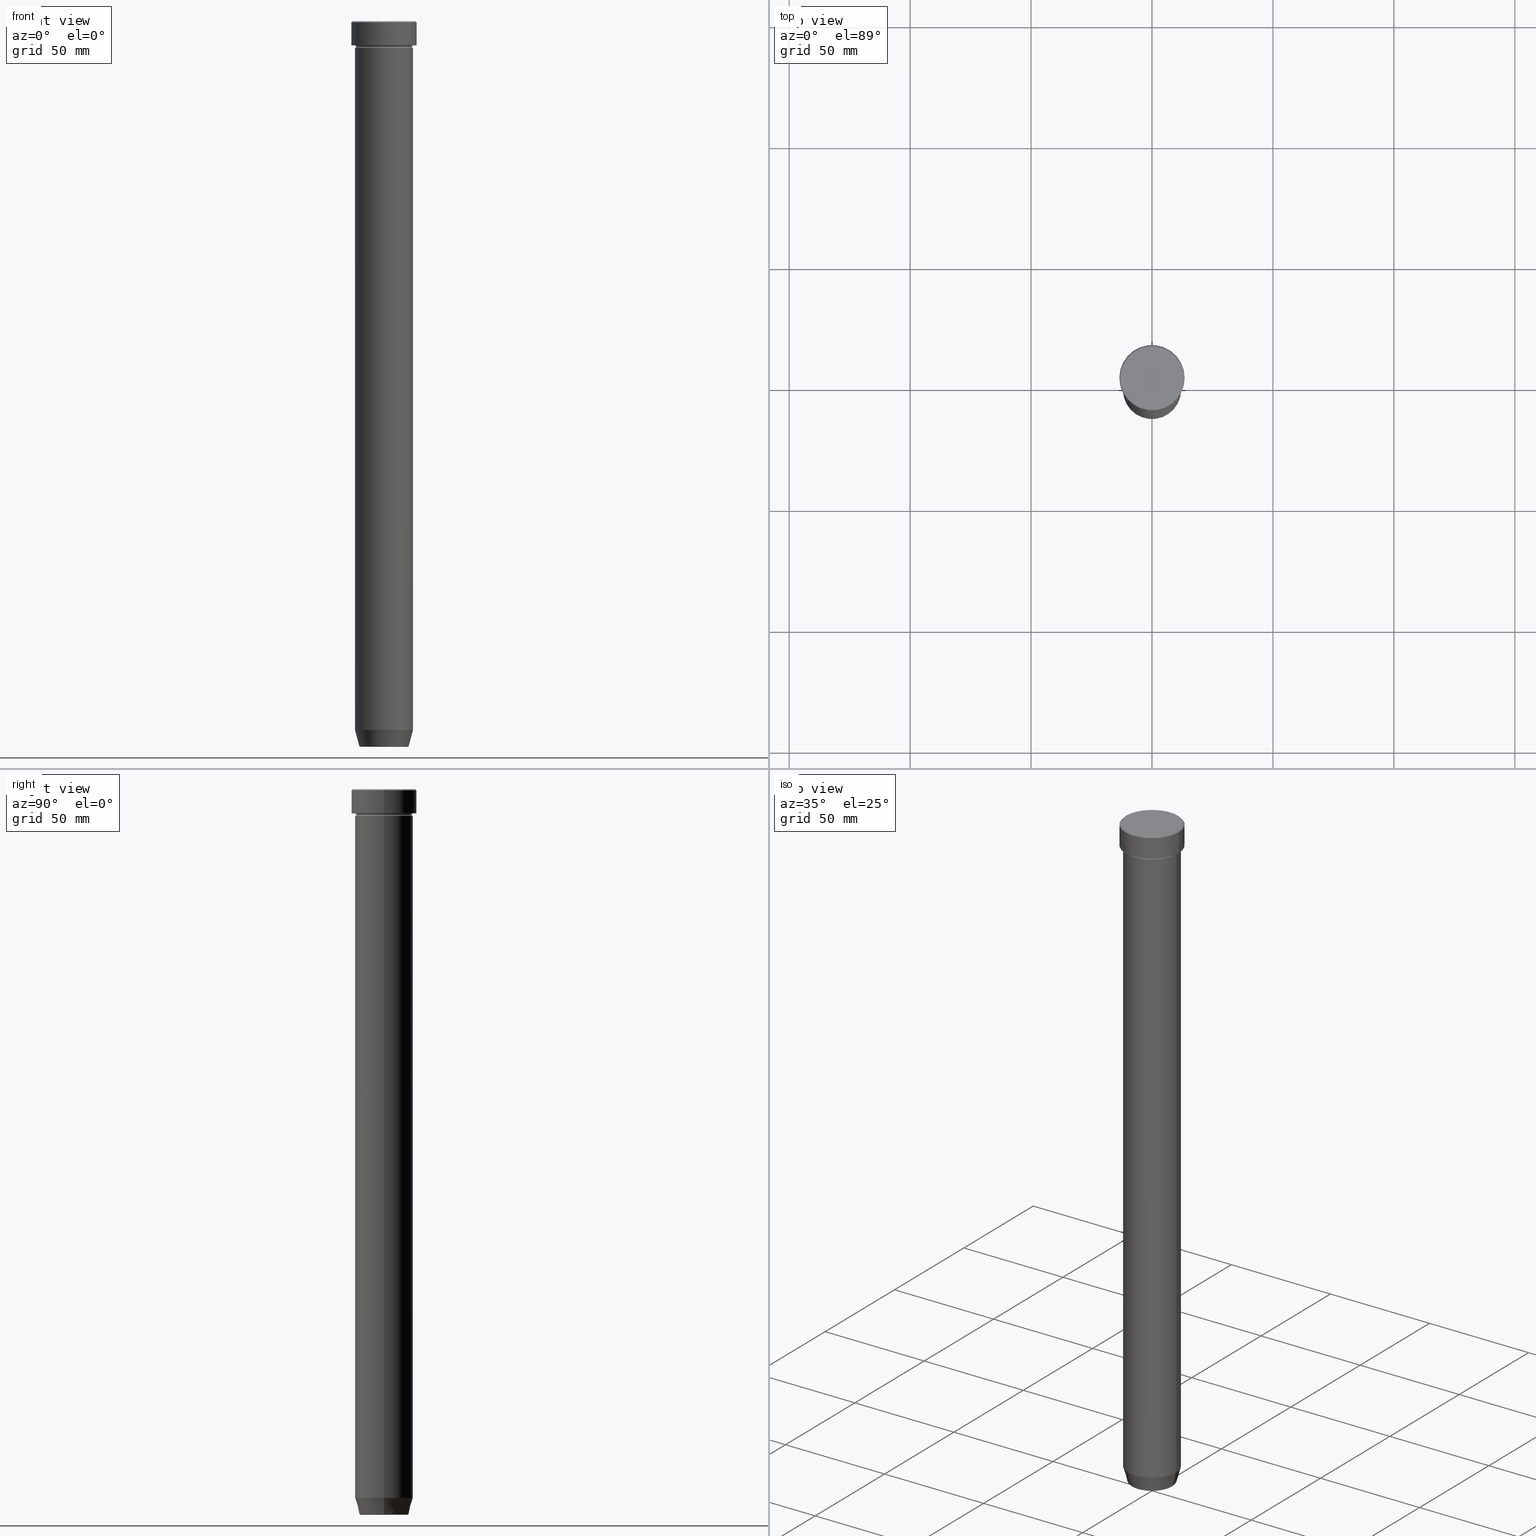
[diagram: canonical four-view strip — front | top / right | iso, engineering-drawing reading convention]
A machine part, canonical four-view strip (front | top / right | iso — engineering-drawing reading convention). The complete STEP part file that produces these views, byte-faithful:
ISO-10303-21;
HEADER;
FILE_DESCRIPTION (( 'STEP AP203' ),
    '1' );
FILE_NAME ('f168.STEP',
    '2024-01-02T17:40:18',
    ( '' ),
    ( '' ),
    'SwSTEP 2.0',
    'SolidWorks 2019',
    '' );
FILE_SCHEMA (( 'CONFIG_CONTROL_DESIGN' ));
ENDSEC;

DATA;
#1 = CARTESIAN_POINT ( 'NONE',  ( 0.000000000000000000, 0.000000000000000000, 0.000000000000000000 ) ) ;
#2 = DIRECTION ( 'NONE',  ( 1.000000000000000000, 0.000000000000000000, 0.000000000000000000 ) ) ;
#3 = ADVANCED_FACE ( 'NONE', ( #332 ), #423, .T. ) ;
#4 = CARTESIAN_POINT ( 'NONE',  ( 0.000000000000000000, 0.000000000000000000, -27.00000000000000000 ) ) ;
#5 = DIRECTION ( 'NONE',  ( -1.000000000000000000, 1.224646799147353454E-16, 0.000000000000000000 ) ) ;
#6 = AXIS2_PLACEMENT_3D ( 'NONE', #547, #9, #286 ) ;
#7 = APPROVAL ( #433, 'NEUR�EN�' ) ;
#8 = PERSON_AND_ORGANIZATION ( #308, #228 ) ;
#9 = DIRECTION ( 'NONE',  ( -0.000000000000000000, -0.000000000000000000, 1.000000000000000000 ) ) ;
#10 = AXIS2_PLACEMENT_3D ( 'NONE', #435, #304, #486 ) ;
#11 = AXIS2_PLACEMENT_3D ( 'NONE', #166, #536, #499 ) ;
#12 = APPROVAL_STATUS ( 'not_yet_approved' ) ;
#13 = CARTESIAN_POINT ( 'NONE',  ( -10.12435565298213369, 1.239875974385398152E-15, -300.0000000000000568 ) ) ;
#14 = ADVANCED_FACE ( 'NONE', ( #472 ), #234, .T. ) ;
#15 = LINE ( 'NONE', #158, #209 ) ;
#16 = CALENDAR_DATE ( 2024, 2, 1 ) ;
#17 = PLANE ( 'NONE',  #356 ) ;
#18 = AXIS2_PLACEMENT_3D ( 'NONE', #155, #570, #441 ) ;
#19 = CIRCLE ( 'NONE', #168, 12.00000000000000000 ) ;
#20 = CALENDAR_DATE ( 2024, 2, 1 ) ;
#21 = DIRECTION ( 'NONE',  ( -1.000000000000000000, 0.000000000000000000, -0.000000000000000000 ) ) ;
#22 = ORIENTED_EDGE ( 'NONE', *, *, #142, .T. ) ;
#23 = CC_DESIGN_PERSON_AND_ORGANIZATION_ASSIGNMENT ( #207, #471, ( #221 ) ) ;
#24 = CARTESIAN_POINT ( 'NONE',  ( 0.000000000000000000, 0.000000000000000000, -0.5000000000000091038 ) ) ;
#25 = ORIENTED_EDGE ( 'NONE', *, *, #142, .F. ) ;
#26 = CARTESIAN_POINT ( 'NONE',  ( 0.000000000000000000, 0.000000000000000000, -293.0000000000000568 ) ) ;
#27 = ORIENTED_EDGE ( 'NONE', *, *, #328, .T. ) ;
#28 = EDGE_LOOP ( 'NONE', ( #85, #170, #506, #141 ) ) ;
#29 = VECTOR ( 'NONE', #211, 1000.000000000000114 ) ;
#30 = AXIS2_PLACEMENT_3D ( 'NONE', #320, #283, #422 ) ;
#31 = DIRECTION ( 'NONE',  ( 0.000000000000000000, 0.000000000000000000, -1.000000000000000000 ) ) ;
#32 = EDGE_CURVE ( 'NONE', #121, #281, #426, .T. ) ;
#33 = ORIENTED_EDGE ( 'NONE', *, *, #88, .F. ) ;
#34 = CARTESIAN_POINT ( 'NONE',  ( 0.000000000000000000, 0.000000000000000000, -0.5000000000000091038 ) ) ;
#35 = ORIENTED_EDGE ( 'NONE', *, *, #533, .T. ) ;
#36 = FACE_OUTER_BOUND ( 'NONE', #28, .T. ) ;
#37 = ORIENTED_EDGE ( 'NONE', *, *, #179, .F. ) ;
#38 = DIRECTION ( 'NONE',  ( 0.000000000000000000, 0.000000000000000000, -1.000000000000000000 ) ) ;
#39 = AXIS2_PLACEMENT_3D ( 'NONE', #418, #185, #372 ) ;
#40 = ORIENTED_EDGE ( 'NONE', *, *, #559, .F. ) ;
#41 = EDGE_CURVE ( 'NONE', #317, #492, #325, .T. ) ;
#42 = CYLINDRICAL_SURFACE ( 'NONE', #599, 13.50000000000000000 ) ;
#43 = ORIENTED_EDGE ( 'NONE', *, *, #515, .T. ) ;
#44 = CARTESIAN_POINT ( 'NONE',  ( 0.000000000000000000, 0.000000000000000000, -299.6294095225512706 ) ) ;
#45 = CARTESIAN_POINT ( 'NONE',  ( 0.000000000000000000, 0.000000000000000000, -300.0000000000000568 ) ) ;
#46 = CARTESIAN_POINT ( 'NONE',  ( 0.000000000000000000, 0.000000000000000000, 0.000000000000000000 ) ) ;
#47 = AXIS2_PLACEMENT_3D ( 'NONE', #147, #292, #327 ) ;
#48 = DIRECTION ( 'NONE',  ( 1.000000000000000000, 0.000000000000000000, 0.000000000000000000 ) ) ;
#49 = AXIS2_PLACEMENT_3D ( 'NONE', #523, #112, #21 ) ;
#50 = CARTESIAN_POINT ( 'NONE',  ( 0.000000000000000000, 0.000000000000000000, -299.5000000000000568 ) ) ;
#51 = AXIS2_PLACEMENT_3D ( 'NONE', #382, #38, #181 ) ;
#52 = EDGE_CURVE ( 'NONE', #543, #469, #585, .T. ) ;
#53 = CARTESIAN_POINT ( 'NONE',  ( 12.00000000000000000, 0.000000000000000000, 0.000000000000000000 ) ) ;
#54 = DIRECTION ( 'NONE',  ( -0.000000000000000000, -0.000000000000000000, 1.000000000000000000 ) ) ;
#55 = PRODUCT_RELATED_PRODUCT_CATEGORY ( 'detail', '', ( #221 ) ) ;
#56 = CALENDAR_DATE ( 2024, 2, 1 ) ;
#57 = DIRECTION ( 'NONE',  ( -1.000000000000000000, -1.224646799147353454E-16, 0.000000000000000000 ) ) ;
#58 = DATE_AND_TIME ( #103, #118 ) ;
#59 = CIRCLE ( 'NONE', #440, 0.5000000000000004441 ) ;
#60 = ORIENTED_EDGE ( 'NONE', *, *, #564, .T. ) ;
#61 = PERSON_AND_ORGANIZATION ( #308, #228 ) ;
#62 = APPLICATION_CONTEXT ( 'configuration controlled 3d designs of mechanical parts and assemblies' ) ;
#63 = CC_DESIGN_PERSON_AND_ORGANIZATION_ASSIGNMENT ( #245, #157, ( #578 ) ) ;
#64 = DIRECTION ( 'NONE',  ( -0.000000000000000000, -0.000000000000000000, 1.000000000000000000 ) ) ;
#65 = APPROVAL_DATE_TIME ( #485, #7 ) ;
#66 = DIRECTION ( 'NONE',  ( -0.000000000000000000, -0.000000000000000000, 1.000000000000000000 ) ) ;
#67 = SECURITY_CLASSIFICATION_LEVEL ( 'unclassified' ) ;
#68 = DIRECTION ( 'NONE',  ( 1.000000000000000000, 0.000000000000000000, 0.000000000000000000 ) ) ;
#69 = ORIENTED_EDGE ( 'NONE', *, *, #583, .F. ) ;
#70 = EDGE_CURVE ( 'NONE', #592, #407, #336, .T. ) ;
#71 = AXIS2_PLACEMENT_3D ( 'NONE', #323, #587, #272 ) ;
#72 = EDGE_LOOP ( 'NONE', ( #554, #183, #76, #25 ) ) ;
#73 = DIRECTION ( 'NONE',  ( -1.000000000000000000, 0.000000000000000000, 0.000000000000000000 ) ) ;
#74 = DIRECTION ( 'NONE',  ( 1.000000000000000000, 0.000000000000000000, 0.000000000000000000 ) ) ;
#75 = ORIENTED_EDGE ( 'NONE', *, *, #484, .T. ) ;
#76 = ORIENTED_EDGE ( 'NONE', *, *, #171, .T. ) ;
#77 = EDGE_CURVE ( 'NONE', #364, #407, #474, .T. ) ;
#78 = CARTESIAN_POINT ( 'NONE',  ( -12.00000000000000000, 1.469576158976823947E-15, 0.000000000000000000 ) ) ;
#79 = ORIENTED_EDGE ( 'NONE', *, *, #206, .T. ) ;
#80 = AXIS2_PLACEMENT_3D ( 'NONE', #26, #131, #496 ) ;
#81 = CC_DESIGN_SECURITY_CLASSIFICATION ( #478, ( #578 ) ) ;
#82 = DIRECTION ( 'NONE',  ( -0.000000000000000000, -0.000000000000000000, 1.000000000000000000 ) ) ;
#83 = ORIENTED_EDGE ( 'NONE', *, *, #32, .F. ) ;
#84 = CARTESIAN_POINT ( 'NONE',  ( 12.00000000000000000, 0.000000000000000000, -11.00000000000000000 ) ) ;
#85 = ORIENTED_EDGE ( 'NONE', *, *, #32, .T. ) ;
#86 = DIRECTION ( 'NONE',  ( 0.000000000000000000, -1.000000000000000000, 0.000000000000000000 ) ) ;
#87 = ORIENTED_EDGE ( 'NONE', *, *, #559, .T. ) ;
#88 = EDGE_CURVE ( 'NONE', #231, #237, #184, .T. ) ;
#89 = CARTESIAN_POINT ( 'NONE',  ( 0.000000000000000000, 0.000000000000000000, -27.00000000000000000 ) ) ;
#90 = AXIS2_PLACEMENT_3D ( 'NONE', #285, #558, #546 ) ;
#91 = DIRECTION ( 'NONE',  ( 1.000000000000000000, 0.000000000000000000, 0.000000000000000000 ) ) ;
#92 = LINE ( 'NONE', #373, #399 ) ;
#93 = ORIENTED_EDGE ( 'NONE', *, *, #455, .T. ) ;
#94 = DIRECTION ( 'NONE',  ( -1.000000000000000000, 0.000000000000000000, -0.000000000000000000 ) ) ;
#95 = ADVANCED_FACE ( 'NONE', ( #425 ), #243, .T. ) ;
#96 = DESIGN_CONTEXT ( 'detailed design', #555, 'design' ) ;
#97 = DIRECTION ( 'NONE',  ( 1.000000000000000000, 0.000000000000000000, 0.000000000000000000 ) ) ;
#98 = EDGE_LOOP ( 'NONE', ( #405, #452, #133, #230 ) ) ;
#99 = DIRECTION ( 'NONE',  ( -0.000000000000000000, -0.000000000000000000, 1.000000000000000000 ) ) ;
#100 = VECTOR ( 'NONE', #501, 1000.000000000000000 ) ;
#101 = DIRECTION ( 'NONE',  ( 1.000000000000000000, 0.000000000000000000, 0.000000000000000000 ) ) ;
#102 = DIRECTION ( 'NONE',  ( 1.224646799147353207E-16, 1.000000000000000000, 0.000000000000000000 ) ) ;
#103 = CALENDAR_DATE ( 2024, 2, 1 ) ;
#104 = LINE ( 'NONE', #78, #177 ) ;
#105 = ADVANCED_FACE ( 'NONE', ( #280 ), #194, .T. ) ;
#106 = MECHANICAL_CONTEXT ( 'NONE', #62, 'mechanical' ) ;
#107 = LINE ( 'NONE', #253, #439 ) ;
#108 = MANIFOLD_SOLID_BREP ( 'Zaoblit4', #274 ) ;
#109 = VECTOR ( 'NONE', #82, 1000.000000000000000 ) ;
#110 = APPROVAL ( #562, 'NEUR�EN�' ) ;
#111 = DIRECTION ( 'NONE',  ( 1.000000000000000000, 0.000000000000000000, 0.000000000000000000 ) ) ;
#112 = DIRECTION ( 'NONE',  ( 0.000000000000000000, 0.000000000000000000, -1.000000000000000000 ) ) ;
#113 = PERSON_AND_ORGANIZATION_ROLE ( 'creator' ) ;
#114 = CARTESIAN_POINT ( 'NONE',  ( 0.000000000000000000, 0.000000000000000000, -10.49999999999999822 ) ) ;
#115 = EDGE_CURVE ( 'NONE', #121, #262, #92, .T. ) ;
#116 = DIRECTION ( 'NONE',  ( 0.000000000000000000, 0.000000000000000000, -1.000000000000000000 ) ) ;
#117 = CIRCLE ( 'NONE', #477, 12.00000000000000000 ) ;
#118 = LOCAL_TIME ( 18, 40, 18.00000000000000000, #256 ) ;
#119 = CARTESIAN_POINT ( 'NONE',  ( -12.00000000000000000, 1.469576158976823947E-15, -27.00000000000000000 ) ) ;
#120 = ORIENTED_EDGE ( 'NONE', *, *, #595, .F. ) ;
#121 = VERTEX_POINT ( 'NONE', #598 ) ;
#122 = EDGE_CURVE ( 'NONE', #317, #592, #199, .T. ) ;
#123 = DIRECTION ( 'NONE',  ( -0.000000000000000000, -0.000000000000000000, 1.000000000000000000 ) ) ;
#124 = EDGE_LOOP ( 'NONE', ( #368, #557, #93, #565 ) ) ;
#125 = CARTESIAN_POINT ( 'NONE',  ( -12.99999999999999645, 0.000000000000000000, 0.000000000000000000 ) ) ;
#126 = ORIENTED_EDGE ( 'NONE', *, *, #564, .F. ) ;
#127 = CIRCLE ( 'NONE', #30, 10.22365507213718416 ) ;
#128 = DIRECTION ( 'NONE',  ( 0.000000000000000000, 0.000000000000000000, -1.000000000000000000 ) ) ;
#129 = VERTEX_POINT ( 'NONE', #417 ) ;
#130 = ADVANCED_BREP_SHAPE_REPRESENTATION ( 'f168', ( #314, #108, #504 ), #278 ) ;
#131 = DIRECTION ( 'NONE',  ( -0.000000000000000000, -0.000000000000000000, 1.000000000000000000 ) ) ;
#132 = ADVANCED_FACE ( 'NONE', ( #550 ), #467, .T. ) ;
#133 = ORIENTED_EDGE ( 'NONE', *, *, #370, .T. ) ;
#134 = AXIS2_PLACEMENT_3D ( 'NONE', #145, #596, #57 ) ;
#135 = FACE_OUTER_BOUND ( 'NONE', #379, .T. ) ;
#136 = AXIS2_PLACEMENT_3D ( 'NONE', #247, #102, #5 ) ;
#137 = DIRECTION ( 'NONE',  ( -0.000000000000000000, -0.000000000000000000, 1.000000000000000000 ) ) ;
#138 = CIRCLE ( 'NONE', #589, 12.00000000000000000 ) ;
#139 = EDGE_LOOP ( 'NONE', ( #357, #460, #60, #535 ) ) ;
#140 = CIRCLE ( 'NONE', #178, 9.740692158992656502 ) ;
#141 = ORIENTED_EDGE ( 'NONE', *, *, #115, .F. ) ;
#142 = EDGE_CURVE ( 'NONE', #407, #364, #227, .T. ) ;
#143 = DIRECTION ( 'NONE',  ( 1.000000000000000000, 0.000000000000000000, 0.000000000000000000 ) ) ;
#144 = ORIENTED_EDGE ( 'NONE', *, *, #70, .T. ) ;
#145 = CARTESIAN_POINT ( 'NONE',  ( 12.00000000000000000, 1.469576158976823947E-15, -10.49999999999999822 ) ) ;
#146 = DIRECTION ( 'NONE',  ( 0.000000000000000000, 0.000000000000000000, -1.000000000000000000 ) ) ;
#147 = CARTESIAN_POINT ( 'NONE',  ( 0.000000000000000000, 0.000000000000000000, 0.000000000000000000 ) ) ;
#148 = EDGE_LOOP ( 'NONE', ( #576, #580, #498, #495 ) ) ;
#149 = CARTESIAN_POINT ( 'NONE',  ( 0.000000000000000000, 0.000000000000000000, 0.000000000000000000 ) ) ;
#150 = AXIS2_PLACEMENT_3D ( 'NONE', #351, #567, #525 ) ;
#151 = DIRECTION ( 'NONE',  ( -0.000000000000000000, -0.000000000000000000, 1.000000000000000000 ) ) ;
#152 = CIRCLE ( 'NONE', #39, 13.50000000000000000 ) ;
#153 = DIRECTION ( 'NONE',  ( -0.000000000000000000, -0.000000000000000000, 1.000000000000000000 ) ) ;
#154 = EDGE_CURVE ( 'NONE', #237, #231, #277, .T. ) ;
#155 = CARTESIAN_POINT ( 'NONE',  ( 0.000000000000000000, 0.000000000000000000, -300.0000000000000568 ) ) ;
#156 = AXIS2_PLACEMENT_3D ( 'NONE', #186, #99, #470 ) ;
#157 = PERSON_AND_ORGANIZATION_ROLE ( 'design_supplier' ) ;
#158 = CARTESIAN_POINT ( 'NONE',  ( 12.99999999999999645, 1.592040838891558701E-15, 0.000000000000000000 ) ) ;
#159 = AXIS2_PLACEMENT_3D ( 'NONE', #46, #464, #419 ) ;
#160 = EDGE_CURVE ( 'NONE', #231, #374, #15, .T. ) ;
#161 = DATE_TIME_ROLE ( 'classification_date' ) ;
#162 = CARTESIAN_POINT ( 'NONE',  ( 0.000000000000000000, 0.000000000000000000, -10.00000000000000000 ) ) ;
#163 = VERTEX_POINT ( 'NONE', #204 ) ;
#164 = DATE_AND_TIME ( #20, #569 ) ;
#165 = CARTESIAN_POINT ( 'NONE',  ( -12.00000000000000000, 1.469576158976823947E-15, -293.0000000000000568 ) ) ;
#166 = CARTESIAN_POINT ( 'NONE',  ( 0.000000000000000000, 0.000000000000000000, -300.0000000000000568 ) ) ;
#167 = CONICAL_SURFACE ( 'NONE', #18, 10.12435565298213369, 0.2617993877991502405 ) ;
#168 = AXIS2_PLACEMENT_3D ( 'NONE', #193, #326, #48 ) ;
#169 = DIRECTION ( 'NONE',  ( 0.000000000000000000, 0.000000000000000000, -1.000000000000000000 ) ) ;
#170 = ORIENTED_EDGE ( 'NONE', *, *, #254, .T. ) ;
#171 = EDGE_CURVE ( 'NONE', #321, #364, #107, .T. ) ;
#172 = FACE_OUTER_BOUND ( 'NONE', #98, .T. ) ;
#173 = VERTEX_POINT ( 'NONE', #165 ) ;
#174 = CARTESIAN_POINT ( 'NONE',  ( 12.00000000000000000, 0.000000000000000000, -10.49999999999999822 ) ) ;
#175 = ORIENTED_EDGE ( 'NONE', *, *, #307, .T. ) ;
#176 = EDGE_LOOP ( 'NONE', ( #545, #457 ) ) ;
#177 = VECTOR ( 'NONE', #123, 1000.000000000000000 ) ;
#178 = AXIS2_PLACEMENT_3D ( 'NONE', #45, #146, #279 ) ;
#179 = EDGE_CURVE ( 'NONE', #446, #321, #117, .T. ) ;
#180 = EDGE_LOOP ( 'NONE', ( #213, #79, #273, #175 ) ) ;
#181 = DIRECTION ( 'NONE',  ( -1.000000000000000000, 0.000000000000000000, 0.000000000000000000 ) ) ;
#182 = ORIENTED_EDGE ( 'NONE', *, *, #88, .T. ) ;
#183 = ORIENTED_EDGE ( 'NONE', *, *, #179, .T. ) ;
#184 = CIRCLE ( 'NONE', #47, 12.99999999999999645 ) ;
#185 = DIRECTION ( 'NONE',  ( -0.000000000000000000, -0.000000000000000000, 1.000000000000000000 ) ) ;
#186 = CARTESIAN_POINT ( 'NONE',  ( 0.000000000000000000, 0.000000000000000000, 0.000000000000000000 ) ) ;
#187 = EDGE_CURVE ( 'NONE', #340, #281, #400, .T. ) ;
#188 = CIRCLE ( 'NONE', #80, 12.00000000000000000 ) ;
#189 = DIRECTION ( 'NONE',  ( 1.000000000000000000, 0.000000000000000000, 0.000000000000000000 ) ) ;
#190 = CIRCLE ( 'NONE', #376, 0.5000000000000004441 ) ;
#191 = DIRECTION ( 'NONE',  ( -1.000000000000000000, 0.000000000000000000, 0.000000000000000000 ) ) ;
#192 = ORIENTED_EDGE ( 'NONE', *, *, #77, .F. ) ;
#193 = CARTESIAN_POINT ( 'NONE',  ( 0.000000000000000000, 0.000000000000000000, -293.0000000000000568 ) ) ;
#194 = CYLINDRICAL_SURFACE ( 'NONE', #159, 13.50000000000000000 ) ;
#195 = DIRECTION ( 'NONE',  ( -0.000000000000000000, -0.000000000000000000, 1.000000000000000000 ) ) ;
#196 = DIRECTION ( 'NONE',  ( -0.000000000000000000, -0.000000000000000000, 1.000000000000000000 ) ) ;
#197 = PERSON_AND_ORGANIZATION ( #308, #228 ) ;
#198 = ADVANCED_FACE ( 'NONE', ( #563 ), #167, .T. ) ;
#199 = CIRCLE ( 'NONE', #588, 11.50000000000000000 ) ;
#200 = CARTESIAN_POINT ( 'NONE',  ( -10.22365507213718416, 1.360806402472382153E-15, -299.6294095225512706 ) ) ;
#201 = CONICAL_SURFACE ( 'NONE', #11, 10.12435565298213369, 0.2617993877991502405 ) ;
#202 = APPROVAL_DATE_TIME ( #58, #395 ) ;
#203 = CC_DESIGN_DATE_AND_TIME_ASSIGNMENT ( #164, #161, ( #478 ) ) ;
#204 = CARTESIAN_POINT ( 'NONE',  ( 9.740692158992656502, 0.000000000000000000, -300.0000000000000568 ) ) ;
#205 = DIRECTION ( 'NONE',  ( -0.000000000000000000, -0.000000000000000000, 1.000000000000000000 ) ) ;
#206 = EDGE_CURVE ( 'NONE', #223, #427, #392, .T. ) ;
#207 = PERSON_AND_ORGANIZATION ( #308, #228 ) ;
#208 = FACE_OUTER_BOUND ( 'NONE', #139, .T. ) ;
#209 = VECTOR ( 'NONE', #302, 1000.000000000000000 ) ;
#210 = TOROIDAL_SURFACE ( 'NONE', #468, 12.00000000000000000, 0.5000000000000000000 ) ;
#211 = DIRECTION ( 'NONE',  ( -0.2588190451025214611, 3.169619151431774186E-17, 0.9659258262890679791 ) ) ;
#212 = DIRECTION ( 'NONE',  ( -0.000000000000000000, -0.000000000000000000, 1.000000000000000000 ) ) ;
#213 = ORIENTED_EDGE ( 'NONE', *, *, #346, .F. ) ;
#214 = ORIENTED_EDGE ( 'NONE', *, *, #122, .T. ) ;
#215 = CARTESIAN_POINT ( 'NONE',  ( 11.50000000000000000, 0.000000000000000000, -10.49999999999999822 ) ) ;
#216 = ADVANCED_FACE ( 'NONE', ( #352 ), #17, .F. ) ;
#217 = ORIENTED_EDGE ( 'NONE', *, *, #505, .F. ) ;
#218 = VECTOR ( 'NONE', #493, 1000.000000000000000 ) ;
#219 = DIRECTION ( 'NONE',  ( -0.000000000000000000, -0.000000000000000000, 1.000000000000000000 ) ) ;
#220 = ORIENTED_EDGE ( 'NONE', *, *, #206, .F. ) ;
#221 = PRODUCT ( 'f168', 'f168', '', ( #106 ) ) ;
#222 = DIRECTION ( 'NONE',  ( 0.000000000000000000, 0.000000000000000000, -1.000000000000000000 ) ) ;
#223 = VERTEX_POINT ( 'NONE', #442 ) ;
#224 = ADVANCED_FACE ( 'NONE', ( #208 ), #298, .T. ) ;
#225 = CARTESIAN_POINT ( 'NONE',  ( -9.740692158992656502, 1.222463696683474604E-15, -300.0000000000000568 ) ) ;
#226 = EDGE_LOOP ( 'NONE', ( #466, #444, #83, #126 ) ) ;
#227 = CIRCLE ( 'NONE', #428, 12.00000000000000000 ) ;
#228 = ORGANIZATION ( 'NEUR�EN�', 'NEUR�EN�', '' ) ;
#229 = CARTESIAN_POINT ( 'NONE',  ( 12.00000000000000000, 0.000000000000000000, -27.00000000000000000 ) ) ;
#230 = ORIENTED_EDGE ( 'NONE', *, *, #77, .T. ) ;
#231 = VERTEX_POINT ( 'NONE', #390 ) ;
#232 = FACE_OUTER_BOUND ( 'NONE', #322, .T. ) ;
#233 = ADVANCED_FACE ( 'NONE', ( #345 ), #541, .F. ) ;
#234 = CYLINDRICAL_SURFACE ( 'NONE', #246, 12.00000000000000000 ) ;
#235 = DIRECTION ( 'NONE',  ( 1.000000000000000000, 0.000000000000000000, 0.000000000000000000 ) ) ;
#236 = DIRECTION ( 'NONE',  ( -0.000000000000000000, -0.000000000000000000, 1.000000000000000000 ) ) ;
#237 = VERTEX_POINT ( 'NONE', #261 ) ;
#238 = AXIS2_PLACEMENT_3D ( 'NONE', #488, #169, #74 ) ;
#239 = CARTESIAN_POINT ( 'NONE',  ( 0.000000000000000000, 0.000000000000000000, -9.999999999999998224 ) ) ;
#240 = AXIS2_PLACEMENT_3D ( 'NONE', #89, #342, #101 ) ;
#241 = DIRECTION ( 'NONE',  ( 1.000000000000000000, 0.000000000000000000, 0.000000000000000000 ) ) ;
#242 =( NAMED_UNIT ( * ) SI_UNIT ( $, .STERADIAN. ) SOLID_ANGLE_UNIT ( ) );
#243 = CYLINDRICAL_SURFACE ( 'NONE', #529, 12.00000000000000000 ) ;
#244 = ADVANCED_FACE ( 'NONE', ( #303 ), #434, .F. ) ;
#245 = PERSON_AND_ORGANIZATION ( #308, #228 ) ;
#246 = AXIS2_PLACEMENT_3D ( 'NONE', #383, #236, #241 ) ;
#247 = CARTESIAN_POINT ( 'NONE',  ( -12.00000000000000000, 1.469576158976823947E-15, -10.49999999999999822 ) ) ;
#248 = APPROVAL_ROLE ( '' ) ;
#249 = AXIS2_PLACEMENT_3D ( 'NONE', #572, #116, #73 ) ;
#250 = DIRECTION ( 'NONE',  ( 1.000000000000000000, 0.000000000000000000, 0.000000000000000000 ) ) ;
#251 = LOCAL_TIME ( 18, 40, 18.00000000000000000, #293 ) ;
#252 = COORDINATED_UNIVERSAL_TIME_OFFSET ( 1, 0, .AHEAD. ) ;
#253 = CARTESIAN_POINT ( 'NONE',  ( 12.00000000000000000, 0.000000000000000000, 0.000000000000000000 ) ) ;
#254 = EDGE_CURVE ( 'NONE', #281, #173, #487, .T. ) ;
#255 = PERSON_AND_ORGANIZATION_ROLE ( 'creator' ) ;
#256 = COORDINATED_UNIVERSAL_TIME_OFFSET ( 1, 0, .AHEAD. ) ;
#257 = DIRECTION ( 'NONE',  ( 0.000000000000000000, -0.000000000000000000, 1.000000000000000000 ) ) ;
#258 = VECTOR ( 'NONE', #219, 1000.000000000000000 ) ;
#259 = CIRCLE ( 'NONE', #449, 12.00000000000000000 ) ;
#260 = ORIENTED_EDGE ( 'NONE', *, *, #370, .F. ) ;
#261 = CARTESIAN_POINT ( 'NONE',  ( -12.99999999999999645, 0.000000000000000000, 0.000000000000000000 ) ) ;
#262 = VERTEX_POINT ( 'NONE', #394 ) ;
#263 = ORIENTED_EDGE ( 'NONE', *, *, #539, .T. ) ;
#264 = ADVANCED_FACE ( 'NONE', ( #388 ), #517, .T. ) ;
#265 = CARTESIAN_POINT ( 'NONE',  ( -12.00000000000000000, 0.000000000000000000, -10.49999999999999822 ) ) ;
#266 = EDGE_LOOP ( 'NONE', ( #69, #220 ) ) ;
#267 = LINE ( 'NONE', #358, #341 ) ;
#268 = ORIENTED_EDGE ( 'NONE', *, *, #290, .T. ) ;
#269 = CC_DESIGN_APPROVAL ( #110, ( #478 ) ) ;
#270 = ADVANCED_FACE ( 'NONE', ( #396 ), #503, .T. ) ;
#271 = ORIENTED_EDGE ( 'NONE', *, *, #307, .F. ) ;
#272 = DIRECTION ( 'NONE',  ( -1.000000000000000000, 0.000000000000000000, -0.000000000000000000 ) ) ;
#273 = ORIENTED_EDGE ( 'NONE', *, *, #411, .T. ) ;
#274 = CLOSED_SHELL ( 'NONE', ( #132, #389, #95, #244, #264, #198, #216, #224 ) ) ;
#275 = CARTESIAN_POINT ( 'NONE',  ( -13.50000000000000000, 1.653273178848926867E-15, -0.5000000000000091038 ) ) ;
#276 = ORIENTED_EDGE ( 'NONE', *, *, #420, .T. ) ;
#277 = CIRCLE ( 'NONE', #287, 12.99999999999999645 ) ;
#278 =( GEOMETRIC_REPRESENTATION_CONTEXT ( 3 ) GLOBAL_UNCERTAINTY_ASSIGNED_CONTEXT ( ( #334 ) ) GLOBAL_UNIT_ASSIGNED_CONTEXT ( ( #331, #553, #242 ) ) REPRESENTATION_CONTEXT ( 'NONE', 'WORKASPACE' ) );
#279 = DIRECTION ( 'NONE',  ( 1.000000000000000000, 0.000000000000000000, 0.000000000000000000 ) ) ;
#280 = FACE_OUTER_BOUND ( 'NONE', #124, .T. ) ;
#281 = VERTEX_POINT ( 'NONE', #200 ) ;
#282 = ADVANCED_FACE ( 'NONE', ( #385 ), #375, .F. ) ;
#283 = DIRECTION ( 'NONE',  ( -0.000000000000000000, -0.000000000000000000, 1.000000000000000000 ) ) ;
#284 = EDGE_LOOP ( 'NONE', ( #33, #386, #402, #437 ) ) ;
#285 = CARTESIAN_POINT ( 'NONE',  ( 0.000000000000000000, 0.000000000000000000, -9.999999999999998224 ) ) ;
#286 = DIRECTION ( 'NONE',  ( 1.000000000000000000, 0.000000000000000000, 0.000000000000000000 ) ) ;
#287 = AXIS2_PLACEMENT_3D ( 'NONE', #511, #153, #481 ) ;
#288 = CIRCLE ( 'NONE', #240, 12.00000000000000000 ) ;
#289 = EDGE_LOOP ( 'NONE', ( #489, #409, #552, #454 ) ) ;
#290 = EDGE_CURVE ( 'NONE', #446, #407, #104, .T. ) ;
#291 = APPLICATION_PROTOCOL_DEFINITION ( 'international standard', 'config_control_design', 1994, #555 ) ;
#292 = DIRECTION ( 'NONE',  ( -0.000000000000000000, -0.000000000000000000, 1.000000000000000000 ) ) ;
#293 = COORDINATED_UNIVERSAL_TIME_OFFSET ( 1, 0, .AHEAD. ) ;
#294 = AXIS2_PLACEMENT_3D ( 'NONE', #371, #137, #507 ) ;
#295 = CARTESIAN_POINT ( 'NONE',  ( 0.000000000000000000, 0.000000000000000000, -10.49999999999999822 ) ) ;
#296 = EDGE_CURVE ( 'NONE', #163, #340, #577, .T. ) ;
#297 = APPROVAL_ROLE ( '' ) ;
#298 = TOROIDAL_SURFACE ( 'NONE', #150, 9.740692158992656502, 0.5000000000000000000 ) ;
#299 = APPROVAL_PERSON_ORGANIZATION ( #61, #110, #248 ) ;
#300 = CARTESIAN_POINT ( 'NONE',  ( 0.000000000000000000, 0.000000000000000000, -27.00000000000000000 ) ) ;
#301 = PERSON_AND_ORGANIZATION ( #308, #228 ) ;
#302 = DIRECTION ( 'NONE',  ( 0.7071067811865439090, 8.659560562354888485E-17, -0.7071067811865512365 ) ) ;
#303 = FACE_OUTER_BOUND ( 'NONE', #413, .T. ) ;
#304 = DIRECTION ( 'NONE',  ( 1.224646799147353207E-16, 1.000000000000000000, 0.000000000000000000 ) ) ;
#305 = AXIS2_PLACEMENT_3D ( 'NONE', #527, #348, #68 ) ;
#306 = AXIS2_PLACEMENT_3D ( 'NONE', #451, #309, #445 ) ;
#307 = EDGE_CURVE ( 'NONE', #374, #324, #329, .T. ) ;
#308 = PERSON ( 'NEUR�EN�', 'NEUR�EN�', 'NEUR�EN�', ('NEUR�EN�'), ('NEUR�EN�'), ('NEUR�EN�') ) ;
#309 = DIRECTION ( 'NONE',  ( 0.000000000000000000, 0.000000000000000000, -1.000000000000000000 ) ) ;
#310 = EDGE_LOOP ( 'NONE', ( #43, #268, #192, #343 ) ) ;
#311 = CC_DESIGN_PERSON_AND_ORGANIZATION_ASSIGNMENT ( #197, #344, ( #478 ) ) ;
#312 = FACE_BOUND ( 'NONE', #593, .T. ) ;
#313 = ORIENTED_EDGE ( 'NONE', *, *, #328, .F. ) ;
#314 = MANIFOLD_SOLID_BREP ( 'Zkosen�1', #526 ) ;
#315 = EDGE_CURVE ( 'NONE', #173, #262, #188, .T. ) ;
#316 = PLANE ( 'NONE',  #71 ) ;
#317 = VERTEX_POINT ( 'NONE', #215 ) ;
#318 = AXIS2_PLACEMENT_3D ( 'NONE', #24, #222, #367 ) ;
#319 = LOCAL_TIME ( 18, 40, 18.00000000000000000, #252 ) ;
#320 = CARTESIAN_POINT ( 'NONE',  ( 0.000000000000000000, 0.000000000000000000, -299.6294095225512706 ) ) ;
#321 = VERTEX_POINT ( 'NONE', #579 ) ;
#322 = EDGE_LOOP ( 'NONE', ( #586, #182 ) ) ;
#323 = CARTESIAN_POINT ( 'NONE',  ( 0.000000000000000000, 13.50000000000000000, -9.999999999999998224 ) ) ;
#324 = VERTEX_POINT ( 'NONE', #275 ) ;
#325 = CIRCLE ( 'NONE', #134, 0.5000000000000004441 ) ;
#326 = DIRECTION ( 'NONE',  ( -0.000000000000000000, -0.000000000000000000, 1.000000000000000000 ) ) ;
#327 = DIRECTION ( 'NONE',  ( 1.000000000000000000, 0.000000000000000000, 0.000000000000000000 ) ) ;
#328 = EDGE_CURVE ( 'NONE', #173, #469, #406, .T. ) ;
#329 = CIRCLE ( 'NONE', #318, 13.50000000000000000 ) ;
#330 = APPROVAL_PERSON_ORGANIZATION ( #301, #7, #571 ) ;
#331 =( LENGTH_UNIT ( ) NAMED_UNIT ( * ) SI_UNIT ( .MILLI., .METRE. ) );
#332 = FACE_OUTER_BOUND ( 'NONE', #310, .T. ) ;
#333 = FACE_OUTER_BOUND ( 'NONE', #362, .T. ) ;
#334 = UNCERTAINTY_MEASURE_WITH_UNIT (LENGTH_MEASURE( 1.000000000000000082E-05 ), #331, 'distance_accuracy_value', 'NONE');
#335 = DIRECTION ( 'NONE',  ( 0.2588190451025214611, 0.000000000000000000, 0.9659258262890679791 ) ) ;
#336 = CIRCLE ( 'NONE', #136, 0.5000000000000004441 ) ;
#337 = DIRECTION ( 'NONE',  ( -0.000000000000000000, -0.000000000000000000, 1.000000000000000000 ) ) ;
#338 = PRODUCT_DEFINITION ( 'NEZN�M�', '', #578, #96 ) ;
#339 = ORIENTED_EDGE ( 'NONE', *, *, #401, .T. ) ;
#340 = VERTEX_POINT ( 'NONE', #225 ) ;
#341 = VECTOR ( 'NONE', #534, 1000.000000000000000 ) ;
#342 = DIRECTION ( 'NONE',  ( -0.000000000000000000, -0.000000000000000000, 1.000000000000000000 ) ) ;
#343 = ORIENTED_EDGE ( 'NONE', *, *, #171, .F. ) ;
#344 = PERSON_AND_ORGANIZATION_ROLE ( 'classification_officer' ) ;
#345 = FACE_OUTER_BOUND ( 'NONE', #528, .T. ) ;
#346 = EDGE_CURVE ( 'NONE', #223, #324, #267, .T. ) ;
#347 = PERSON_AND_ORGANIZATION ( #308, #228 ) ;
#348 = DIRECTION ( 'NONE',  ( -0.000000000000000000, -0.000000000000000000, 1.000000000000000000 ) ) ;
#349 = CARTESIAN_POINT ( 'NONE',  ( 0.000000000000000000, 3.061616997868383753E-14, -300.0000000000000568 ) ) ;
#350 = DATE_AND_TIME ( #16, #251 ) ;
#351 = CARTESIAN_POINT ( 'NONE',  ( 0.000000000000000000, 0.000000000000000000, -299.5000000000000568 ) ) ;
#352 = FACE_OUTER_BOUND ( 'NONE', #176, .T. ) ;
#353 = CC_DESIGN_DATE_AND_TIME_ASSIGNMENT ( #350, #391, ( #338 ) ) ;
#354 = ORIENTED_EDGE ( 'NONE', *, *, #52, .F. ) ;
#355 = LINE ( 'NONE', #584, #109 ) ;
#356 = AXIS2_PLACEMENT_3D ( 'NONE', #349, #257, #476 ) ;
#357 = ORIENTED_EDGE ( 'NONE', *, *, #187, .F. ) ;
#358 = CARTESIAN_POINT ( 'NONE',  ( -13.50000000000000000, 1.653273178848926867E-15, 0.000000000000000000 ) ) ;
#359 = EDGE_LOOP ( 'NONE', ( #75, #27, #354, #40 ) ) ;
#360 = ADVANCED_FACE ( 'NONE', ( #312, #491 ), #316, .T. ) ;
#361 = DIRECTION ( 'NONE',  ( 1.000000000000000000, 0.000000000000000000, 0.000000000000000000 ) ) ;
#362 = EDGE_LOOP ( 'NONE', ( #414, #37 ) ) ;
#363 = DIRECTION ( 'NONE',  ( -0.000000000000000000, -1.000000000000000000, -0.000000000000000000 ) ) ;
#364 = VERTEX_POINT ( 'NONE', #84 ) ;
#365 = AXIS2_PLACEMENT_3D ( 'NONE', #114, #66, #431 ) ;
#366 = AXIS2_PLACEMENT_3D ( 'NONE', #513, #462, #94 ) ;
#367 = DIRECTION ( 'NONE',  ( 1.000000000000000000, 0.000000000000000000, 0.000000000000000000 ) ) ;
#368 = ORIENTED_EDGE ( 'NONE', *, *, #583, .T. ) ;
#369 = DIRECTION ( 'NONE',  ( -0.000000000000000000, -0.000000000000000000, 1.000000000000000000 ) ) ;
#370 = EDGE_CURVE ( 'NONE', #317, #364, #190, .T. ) ;
#371 = CARTESIAN_POINT ( 'NONE',  ( 0.000000000000000000, 0.000000000000000000, -11.00000000000000000 ) ) ;
#372 = DIRECTION ( 'NONE',  ( 1.000000000000000000, 0.000000000000000000, 0.000000000000000000 ) ) ;
#373 = CARTESIAN_POINT ( 'NONE',  ( 10.12435565298213369, 0.000000000000000000, -300.0000000000000568 ) ) ;
#374 = VERTEX_POINT ( 'NONE', #453 ) ;
#375 = TOROIDAL_SURFACE ( 'NONE', #568, 12.00000000000000000, 0.5000000000000000000 ) ;
#376 = AXIS2_PLACEMENT_3D ( 'NONE', #174, #86, #31 ) ;
#377 = CARTESIAN_POINT ( 'NONE',  ( -12.00000000000000000, 1.469576158976823947E-15, -27.00000000000000000 ) ) ;
#378 = DIRECTION ( 'NONE',  ( -0.000000000000000000, -0.000000000000000000, 1.000000000000000000 ) ) ;
#379 = EDGE_LOOP ( 'NONE', ( #450, #500, #339, #271 ) ) ;
#380 = ADVANCED_FACE ( 'NONE', ( #172 ), #210, .F. ) ;
#381 = PLANE ( 'NONE',  #366 ) ;
#382 = CARTESIAN_POINT ( 'NONE',  ( 0.000000000000000000, 0.000000000000000000, 0.000000000000000000 ) ) ;
#383 = CARTESIAN_POINT ( 'NONE',  ( 0.000000000000000000, 0.000000000000000000, 0.000000000000000000 ) ) ;
#384 = CALENDAR_DATE ( 2024, 2, 1 ) ;
#385 = FACE_OUTER_BOUND ( 'NONE', #289, .T. ) ;
#386 = ORIENTED_EDGE ( 'NONE', *, *, #160, .T. ) ;
#387 = PERSON_AND_ORGANIZATION ( #308, #228 ) ;
#388 = FACE_OUTER_BOUND ( 'NONE', #537, .T. ) ;
#389 = ADVANCED_FACE ( 'NONE', ( #36 ), #201, .T. ) ;
#390 = CARTESIAN_POINT ( 'NONE',  ( 12.99999999999999645, 1.622657008870242882E-15, 0.000000000000000000 ) ) ;
#391 = DATE_TIME_ROLE ( 'creation_date' ) ;
#392 = CIRCLE ( 'NONE', #549, 13.50000000000000000 ) ;
#393 = AXIS2_PLACEMENT_3D ( 'NONE', #34, #128, #544 ) ;
#394 = CARTESIAN_POINT ( 'NONE',  ( 12.00000000000000000, 0.000000000000000000, -293.0000000000000568 ) ) ;
#395 = APPROVAL ( #12, 'NEUR�EN�' ) ;
#396 = FACE_OUTER_BOUND ( 'NONE', #284, .T. ) ;
#397 = CARTESIAN_POINT ( 'NONE',  ( -12.00000000000000000, 1.469576158976823947E-15, -11.00000000000000000 ) ) ;
#398 = LINE ( 'NONE', #125, #218 ) ;
#399 = VECTOR ( 'NONE', #335, 1000.000000000000114 ) ;
#400 = CIRCLE ( 'NONE', #10, 0.5000000000000004441 ) ;
#401 = EDGE_CURVE ( 'NONE', #237, #324, #398, .T. ) ;
#402 = ORIENTED_EDGE ( 'NONE', *, *, #455, .F. ) ;
#403 = LOCAL_TIME ( 18, 40, 18.00000000000000000, #516 ) ;
#404 = DIRECTION ( 'NONE',  ( 0.000000000000000000, 0.000000000000000000, -1.000000000000000000 ) ) ;
#405 = ORIENTED_EDGE ( 'NONE', *, *, #70, .F. ) ;
#406 = LINE ( 'NONE', #447, #258 ) ;
#407 = VERTEX_POINT ( 'NONE', #397 ) ;
#408 = FACE_OUTER_BOUND ( 'NONE', #432, .T. ) ;
#409 = ORIENTED_EDGE ( 'NONE', *, *, #41, .T. ) ;
#410 = TOROIDAL_SURFACE ( 'NONE', #306, 12.00000000000000000, 0.5000000000000000000 ) ;
#411 = EDGE_CURVE ( 'NONE', #427, #374, #355, .T. ) ;
#412 = DIRECTION ( 'NONE',  ( 0.000000000000000000, 0.000000000000000000, -1.000000000000000000 ) ) ;
#413 = EDGE_LOOP ( 'NONE', ( #590, #263 ) ) ;
#414 = ORIENTED_EDGE ( 'NONE', *, *, #515, .F. ) ;
#415 = DIRECTION ( 'NONE',  ( 1.000000000000000000, 0.000000000000000000, 0.000000000000000000 ) ) ;
#416 = CC_DESIGN_PERSON_AND_ORGANIZATION_ASSIGNMENT ( #347, #255, ( #578 ) ) ;
#417 = CARTESIAN_POINT ( 'NONE',  ( -12.00000000000000000, 0.000000000000000000, -9.999999999999998224 ) ) ;
#418 = CARTESIAN_POINT ( 'NONE',  ( 0.000000000000000000, 0.000000000000000000, -10.00000000000000000 ) ) ;
#419 = DIRECTION ( 'NONE',  ( 1.000000000000000000, 0.000000000000000000, 0.000000000000000000 ) ) ;
#420 = EDGE_CURVE ( 'NONE', #592, #129, #421, .T. ) ;
#421 = CIRCLE ( 'NONE', #458, 0.5000000000000004441 ) ;
#422 = DIRECTION ( 'NONE',  ( -1.000000000000000000, 0.000000000000000000, 0.000000000000000000 ) ) ;
#423 = CYLINDRICAL_SURFACE ( 'NONE', #156, 12.00000000000000000 ) ;
#424 = DIRECTION ( 'NONE',  ( -1.000000000000000000, 0.000000000000000000, 0.000000000000000000 ) ) ;
#425 = FACE_OUTER_BOUND ( 'NONE', #359, .T. ) ;
#426 = CIRCLE ( 'NONE', #573, 10.22365507213718416 ) ;
#427 = VERTEX_POINT ( 'NONE', #540 ) ;
#428 = AXIS2_PLACEMENT_3D ( 'NONE', #560, #151, #2 ) ;
#429 = CC_DESIGN_APPROVAL ( #395, ( #338 ) ) ;
#430 = CC_DESIGN_PERSON_AND_ORGANIZATION_ASSIGNMENT ( #387, #113, ( #338 ) ) ;
#431 = DIRECTION ( 'NONE',  ( 1.000000000000000000, 0.000000000000000000, 0.000000000000000000 ) ) ;
#432 = EDGE_LOOP ( 'NONE', ( #538, #214, #276, #217 ) ) ;
#433 = APPROVAL_STATUS ( 'not_yet_approved' ) ;
#434 = PLANE ( 'NONE',  #49 ) ;
#435 = CARTESIAN_POINT ( 'NONE',  ( -9.740692158992656502, 1.192890747399007864E-15, -299.5000000000000568 ) ) ;
#436 = ADVANCED_FACE ( 'NONE', ( #408 ), #410, .F. ) ;
#437 = ORIENTED_EDGE ( 'NONE', *, *, #401, .F. ) ;
#438 = APPROVAL_DATE_TIME ( #566, #110 ) ;
#439 = VECTOR ( 'NONE', #519, 1000.000000000000000 ) ;
#440 = AXIS2_PLACEMENT_3D ( 'NONE', #465, #556, #412 ) ;
#441 = DIRECTION ( 'NONE',  ( 1.000000000000000000, 0.000000000000000000, 0.000000000000000000 ) ) ;
#442 = CARTESIAN_POINT ( 'NONE',  ( -13.50000000000000000, 1.653273178848926867E-15, -10.00000000000000000 ) ) ;
#443 = PRODUCT_DEFINITION_SHAPE ( 'NONE', 'NONE',  #338 ) ;
#444 = ORIENTED_EDGE ( 'NONE', *, *, #187, .T. ) ;
#445 = DIRECTION ( 'NONE',  ( -1.000000000000000000, 0.000000000000000000, 0.000000000000000000 ) ) ;
#446 = VERTEX_POINT ( 'NONE', #119 ) ;
#447 = CARTESIAN_POINT ( 'NONE',  ( -12.00000000000000000, 1.469576158976823947E-15, 0.000000000000000000 ) ) ;
#448 = AXIS2_PLACEMENT_3D ( 'NONE', #50, #196, #97 ) ;
#449 = AXIS2_PLACEMENT_3D ( 'NONE', #4, #369, #415 ) ;
#450 = ORIENTED_EDGE ( 'NONE', *, *, #160, .F. ) ;
#451 = CARTESIAN_POINT ( 'NONE',  ( 0.000000000000000000, 0.000000000000000000, -10.49999999999999822 ) ) ;
#452 = ORIENTED_EDGE ( 'NONE', *, *, #122, .F. ) ;
#453 = CARTESIAN_POINT ( 'NONE',  ( 13.50000000000000000, 0.000000000000000000, -0.5000000000000091038 ) ) ;
#454 = ORIENTED_EDGE ( 'NONE', *, *, #420, .F. ) ;
#455 = EDGE_CURVE ( 'NONE', #324, #374, #551, .T. ) ;
#456 = PLANE ( 'NONE',  #530 ) ;
#457 = ORIENTED_EDGE ( 'NONE', *, *, #575, .T. ) ;
#458 = AXIS2_PLACEMENT_3D ( 'NONE', #265, #363, #531 ) ;
#459 = FACE_OUTER_BOUND ( 'NONE', #180, .T. ) ;
#460 = ORIENTED_EDGE ( 'NONE', *, *, #296, .F. ) ;
#461 = CARTESIAN_POINT ( 'NONE',  ( 0.000000000000000000, 0.000000000000000000, -10.49999999999999822 ) ) ;
#462 = DIRECTION ( 'NONE',  ( 0.000000000000000000, 0.000000000000000000, -1.000000000000000000 ) ) ;
#463 = EDGE_CURVE ( 'NONE', #281, #121, #127, .T. ) ;
#464 = DIRECTION ( 'NONE',  ( -0.000000000000000000, -0.000000000000000000, 1.000000000000000000 ) ) ;
#465 = CARTESIAN_POINT ( 'NONE',  ( 9.740692158992656502, 0.000000000000000000, -299.5000000000000568 ) ) ;
#466 = ORIENTED_EDGE ( 'NONE', *, *, #575, .F. ) ;
#467 = TOROIDAL_SURFACE ( 'NONE', #448, 9.740692158992656502, 0.5000000000000000000 ) ;
#468 = AXIS2_PLACEMENT_3D ( 'NONE', #574, #212, #361 ) ;
#469 = VERTEX_POINT ( 'NONE', #377 ) ;
#470 = DIRECTION ( 'NONE',  ( 1.000000000000000000, 0.000000000000000000, 0.000000000000000000 ) ) ;
#471 = PERSON_AND_ORGANIZATION_ROLE ( 'design_owner' ) ;
#472 = FACE_OUTER_BOUND ( 'NONE', #72, .T. ) ;
#473 = ADVANCED_FACE ( 'NONE', ( #459 ), #42, .T. ) ;
#474 = CIRCLE ( 'NONE', #294, 12.00000000000000000 ) ;
#475 = SHAPE_DEFINITION_REPRESENTATION ( #443, #130 ) ;
#476 = DIRECTION ( 'NONE',  ( 1.000000000000000000, 0.000000000000000000, 0.000000000000000000 ) ) ;
#477 = AXIS2_PLACEMENT_3D ( 'NONE', #300, #64, #250 ) ;
#478 = SECURITY_CLASSIFICATION ( '', '', #67 ) ;
#479 = COORDINATED_UNIVERSAL_TIME_OFFSET ( 1, 0, .AHEAD. ) ;
#480 = CC_DESIGN_APPROVAL ( #7, ( #578 ) ) ;
#481 = DIRECTION ( 'NONE',  ( 1.000000000000000000, 0.000000000000000000, 0.000000000000000000 ) ) ;
#482 = APPLICATION_PROTOCOL_DEFINITION ( 'international standard', 'config_control_design', 1994, #62 ) ;
#483 = DIRECTION ( 'NONE',  ( 1.000000000000000000, 0.000000000000000000, 0.000000000000000000 ) ) ;
#484 = EDGE_CURVE ( 'NONE', #262, #173, #19, .T. ) ;
#485 = DATE_AND_TIME ( #56, #403 ) ;
#486 = DIRECTION ( 'NONE',  ( -1.000000000000000000, 1.224646799147353454E-16, 0.000000000000000000 ) ) ;
#487 = LINE ( 'NONE', #13, #29 ) ;
#488 = CARTESIAN_POINT ( 'NONE',  ( 0.000000000000000000, 0.000000000000000000, -300.0000000000000568 ) ) ;
#489 = ORIENTED_EDGE ( 'NONE', *, *, #595, .T. ) ;
#490 = ADVANCED_FACE ( 'NONE', ( #232 ), #456, .T. ) ;
#491 = FACE_OUTER_BOUND ( 'NONE', #266, .T. ) ;
#492 = VERTEX_POINT ( 'NONE', #591 ) ;
#493 = DIRECTION ( 'NONE',  ( -0.7071067811865439090, 0.000000000000000000, -0.7071067811865512365 ) ) ;
#494 = CONICAL_SURFACE ( 'NONE', #51, 12.99999999999999645, 0.7853981633974431720 ) ;
#495 = ORIENTED_EDGE ( 'NONE', *, *, #315, .F. ) ;
#496 = DIRECTION ( 'NONE',  ( 1.000000000000000000, 0.000000000000000000, 0.000000000000000000 ) ) ;
#497 = ADVANCED_FACE ( 'NONE', ( #333 ), #381, .T. ) ;
#498 = ORIENTED_EDGE ( 'NONE', *, *, #115, .T. ) ;
#499 = DIRECTION ( 'NONE',  ( 1.000000000000000000, 0.000000000000000000, 0.000000000000000000 ) ) ;
#500 = ORIENTED_EDGE ( 'NONE', *, *, #154, .F. ) ;
#501 = DIRECTION ( 'NONE',  ( -0.000000000000000000, -0.000000000000000000, 1.000000000000000000 ) ) ;
#502 = CARTESIAN_POINT ( 'NONE',  ( 0.000000000000000000, 0.000000000000000000, 0.000000000000000000 ) ) ;
#503 = CONICAL_SURFACE ( 'NONE', #249, 12.99999999999999645, 0.7853981633974431720 ) ;
#504 = AXIS2_PLACEMENT_3D ( 'NONE', #524, #522, #111 ) ;
#505 = EDGE_CURVE ( 'NONE', #492, #129, #138, .T. ) ;
#506 = ORIENTED_EDGE ( 'NONE', *, *, #484, .F. ) ;
#507 = DIRECTION ( 'NONE',  ( 1.000000000000000000, 0.000000000000000000, 0.000000000000000000 ) ) ;
#508 = DIRECTION ( 'NONE',  ( 0.000000000000000000, -0.000000000000000000, 1.000000000000000000 ) ) ;
#509 = DIRECTION ( 'NONE',  ( 1.000000000000000000, 0.000000000000000000, 0.000000000000000000 ) ) ;
#510 = DIRECTION ( 'NONE',  ( -0.000000000000000000, -0.000000000000000000, 1.000000000000000000 ) ) ;
#511 = CARTESIAN_POINT ( 'NONE',  ( 0.000000000000000000, 0.000000000000000000, 0.000000000000000000 ) ) ;
#512 = CIRCLE ( 'NONE', #561, 11.50000000000000000 ) ;
#513 = CARTESIAN_POINT ( 'NONE',  ( 0.000000000000000000, 12.00000000000000000, -27.00000000000000000 ) ) ;
#514 = DIRECTION ( 'NONE',  ( -0.000000000000000000, -0.000000000000000000, 1.000000000000000000 ) ) ;
#515 = EDGE_CURVE ( 'NONE', #321, #446, #259, .T. ) ;
#516 = COORDINATED_UNIVERSAL_TIME_OFFSET ( 1, 0, .AHEAD. ) ;
#517 = CYLINDRICAL_SURFACE ( 'NONE', #305, 12.00000000000000000 ) ;
#518 = ORIENTED_EDGE ( 'NONE', *, *, #315, .T. ) ;
#519 = DIRECTION ( 'NONE',  ( -0.000000000000000000, -0.000000000000000000, 1.000000000000000000 ) ) ;
#520 = APPROVAL_PERSON_ORGANIZATION ( #8, #395, #297 ) ;
#521 = ADVANCED_FACE ( 'NONE', ( #135 ), #494, .T. ) ;
#522 = DIRECTION ( 'NONE',  ( 0.000000000000000000, 0.000000000000000000, 1.000000000000000000 ) ) ;
#523 = CARTESIAN_POINT ( 'NONE',  ( 0.000000000000000000, 0.000000000000000000, -27.00000000000000000 ) ) ;
#524 = CARTESIAN_POINT ( 'NONE',  ( 0.000000000000000000, 0.000000000000000000, 0.000000000000000000 ) ) ;
#525 = DIRECTION ( 'NONE',  ( 1.000000000000000000, 0.000000000000000000, 0.000000000000000000 ) ) ;
#526 = CLOSED_SHELL ( 'NONE', ( #270, #282, #233, #3, #105, #497, #490, #473, #360, #14, #380, #436, #521 ) ) ;
#527 = CARTESIAN_POINT ( 'NONE',  ( 0.000000000000000000, 0.000000000000000000, 0.000000000000000000 ) ) ;
#528 = EDGE_LOOP ( 'NONE', ( #120, #144, #22, #260 ) ) ;
#529 = AXIS2_PLACEMENT_3D ( 'NONE', #502, #378, #91 ) ;
#530 = AXIS2_PLACEMENT_3D ( 'NONE', #149, #508, #143 ) ;
#531 = DIRECTION ( 'NONE',  ( 0.000000000000000000, 0.000000000000000000, -1.000000000000000000 ) ) ;
#532 = ORIENTED_EDGE ( 'NONE', *, *, #505, .T. ) ;
#533 = EDGE_CURVE ( 'NONE', #129, #492, #542, .T. ) ;
#534 = DIRECTION ( 'NONE',  ( -0.000000000000000000, -0.000000000000000000, 1.000000000000000000 ) ) ;
#535 = ORIENTED_EDGE ( 'NONE', *, *, #463, .F. ) ;
#536 = DIRECTION ( 'NONE',  ( -0.000000000000000000, -0.000000000000000000, 1.000000000000000000 ) ) ;
#537 = EDGE_LOOP ( 'NONE', ( #313, #518, #87, #582 ) ) ;
#538 = ORIENTED_EDGE ( 'NONE', *, *, #41, .F. ) ;
#539 = EDGE_CURVE ( 'NONE', #469, #543, #288, .T. ) ;
#540 = CARTESIAN_POINT ( 'NONE',  ( 13.50000000000000000, 0.000000000000000000, -10.00000000000000000 ) ) ;
#541 = TOROIDAL_SURFACE ( 'NONE', #365, 12.00000000000000000, 0.5000000000000000000 ) ;
#542 = CIRCLE ( 'NONE', #90, 12.00000000000000000 ) ;
#543 = VERTEX_POINT ( 'NONE', #229 ) ;
#544 = DIRECTION ( 'NONE',  ( 1.000000000000000000, 0.000000000000000000, 0.000000000000000000 ) ) ;
#545 = ORIENTED_EDGE ( 'NONE', *, *, #296, .T. ) ;
#546 = DIRECTION ( 'NONE',  ( -1.000000000000000000, 0.000000000000000000, 0.000000000000000000 ) ) ;
#547 = CARTESIAN_POINT ( 'NONE',  ( 0.000000000000000000, 0.000000000000000000, -27.00000000000000000 ) ) ;
#548 = CARTESIAN_POINT ( 'NONE',  ( -11.50000000000000000, 1.438959988998139963E-15, -10.49999999999999822 ) ) ;
#549 = AXIS2_PLACEMENT_3D ( 'NONE', #162, #205, #483 ) ;
#550 = FACE_OUTER_BOUND ( 'NONE', #226, .T. ) ;
#551 = CIRCLE ( 'NONE', #393, 13.50000000000000000 ) ;
#552 = ORIENTED_EDGE ( 'NONE', *, *, #533, .F. ) ;
#553 =( NAMED_UNIT ( * ) PLANE_ANGLE_UNIT ( ) SI_UNIT ( $, .RADIAN. ) );
#554 = ORIENTED_EDGE ( 'NONE', *, *, #290, .F. ) ;
#555 = APPLICATION_CONTEXT ( 'configuration controlled 3d designs of mechanical parts and assemblies' ) ;
#556 = DIRECTION ( 'NONE',  ( 0.000000000000000000, -1.000000000000000000, 0.000000000000000000 ) ) ;
#557 = ORIENTED_EDGE ( 'NONE', *, *, #346, .T. ) ;
#558 = DIRECTION ( 'NONE',  ( -0.000000000000000000, -0.000000000000000000, 1.000000000000000000 ) ) ;
#559 = EDGE_CURVE ( 'NONE', #262, #543, #594, .T. ) ;
#560 = CARTESIAN_POINT ( 'NONE',  ( 0.000000000000000000, 0.000000000000000000, -11.00000000000000000 ) ) ;
#561 = AXIS2_PLACEMENT_3D ( 'NONE', #597, #337, #189 ) ;
#562 = APPROVAL_STATUS ( 'not_yet_approved' ) ;
#563 = FACE_OUTER_BOUND ( 'NONE', #148, .T. ) ;
#564 = EDGE_CURVE ( 'NONE', #163, #121, #59, .T. ) ;
#565 = ORIENTED_EDGE ( 'NONE', *, *, #411, .F. ) ;
#566 = DATE_AND_TIME ( #384, #319 ) ;
#567 = DIRECTION ( 'NONE',  ( -0.000000000000000000, -0.000000000000000000, 1.000000000000000000 ) ) ;
#568 = AXIS2_PLACEMENT_3D ( 'NONE', #295, #404, #581 ) ;
#569 = LOCAL_TIME ( 18, 40, 18.00000000000000000, #479 ) ;
#570 = DIRECTION ( 'NONE',  ( -0.000000000000000000, -0.000000000000000000, 1.000000000000000000 ) ) ;
#571 = APPROVAL_ROLE ( '' ) ;
#572 = CARTESIAN_POINT ( 'NONE',  ( 0.000000000000000000, 0.000000000000000000, 0.000000000000000000 ) ) ;
#573 = AXIS2_PLACEMENT_3D ( 'NONE', #44, #514, #191 ) ;
#574 = CARTESIAN_POINT ( 'NONE',  ( 0.000000000000000000, 0.000000000000000000, -10.49999999999999822 ) ) ;
#575 = EDGE_CURVE ( 'NONE', #340, #163, #140, .T. ) ;
#576 = ORIENTED_EDGE ( 'NONE', *, *, #254, .F. ) ;
#577 = CIRCLE ( 'NONE', #238, 9.740692158992656502 ) ;
#578 = PRODUCT_DEFINITION_FORMATION_WITH_SPECIFIED_SOURCE ( 'LIBOVOLN�', '', #221, .NOT_KNOWN. ) ;
#579 = CARTESIAN_POINT ( 'NONE',  ( 12.00000000000000000, 0.000000000000000000, -27.00000000000000000 ) ) ;
#580 = ORIENTED_EDGE ( 'NONE', *, *, #463, .T. ) ;
#581 = DIRECTION ( 'NONE',  ( -1.000000000000000000, 0.000000000000000000, 0.000000000000000000 ) ) ;
#582 = ORIENTED_EDGE ( 'NONE', *, *, #539, .F. ) ;
#583 = EDGE_CURVE ( 'NONE', #427, #223, #152, .T. ) ;
#584 = CARTESIAN_POINT ( 'NONE',  ( 13.50000000000000000, 0.000000000000000000, 0.000000000000000000 ) ) ;
#585 = CIRCLE ( 'NONE', #6, 12.00000000000000000 ) ;
#586 = ORIENTED_EDGE ( 'NONE', *, *, #154, .T. ) ;
#587 = DIRECTION ( 'NONE',  ( 0.000000000000000000, 0.000000000000000000, -1.000000000000000000 ) ) ;
#588 = AXIS2_PLACEMENT_3D ( 'NONE', #461, #54, #509 ) ;
#589 = AXIS2_PLACEMENT_3D ( 'NONE', #239, #195, #424 ) ;
#590 = ORIENTED_EDGE ( 'NONE', *, *, #52, .T. ) ;
#591 = CARTESIAN_POINT ( 'NONE',  ( 12.00000000000000000, 1.469576158976823947E-15, -9.999999999999998224 ) ) ;
#592 = VERTEX_POINT ( 'NONE', #548 ) ;
#593 = EDGE_LOOP ( 'NONE', ( #35, #532 ) ) ;
#594 = LINE ( 'NONE', #53, #100 ) ;
#595 = EDGE_CURVE ( 'NONE', #592, #317, #512, .T. ) ;
#596 = DIRECTION ( 'NONE',  ( -1.224646799147353207E-16, 1.000000000000000000, 0.000000000000000000 ) ) ;
#597 = CARTESIAN_POINT ( 'NONE',  ( 0.000000000000000000, 0.000000000000000000, -10.49999999999999822 ) ) ;
#598 = CARTESIAN_POINT ( 'NONE',  ( 10.22365507213718416, 0.000000000000000000, -299.6294095225512706 ) ) ;
#599 = AXIS2_PLACEMENT_3D ( 'NONE', #1, #510, #235 ) ;
ENDSEC;
END-ISO-10303-21;
